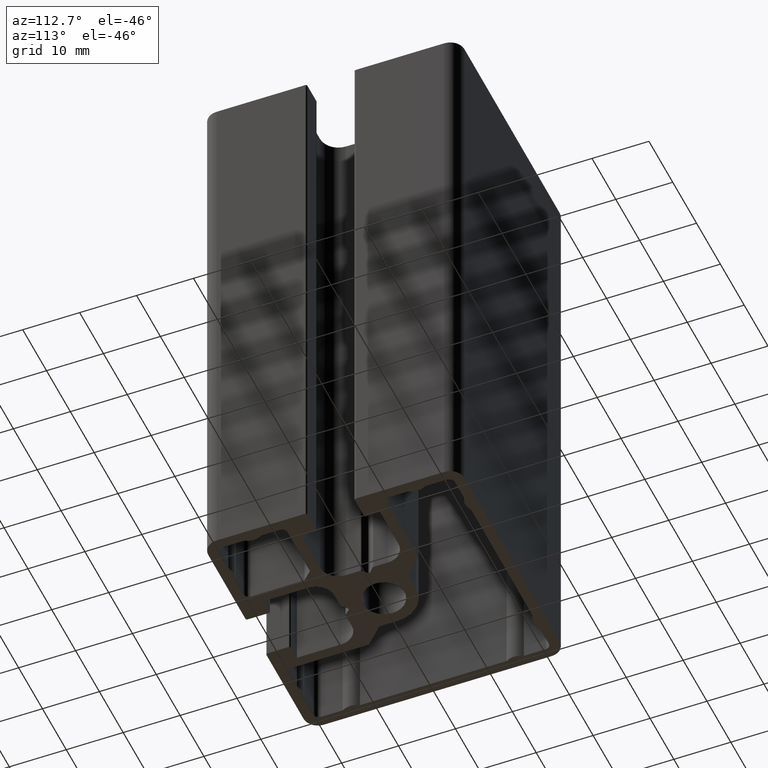
[diagram: clean part render]
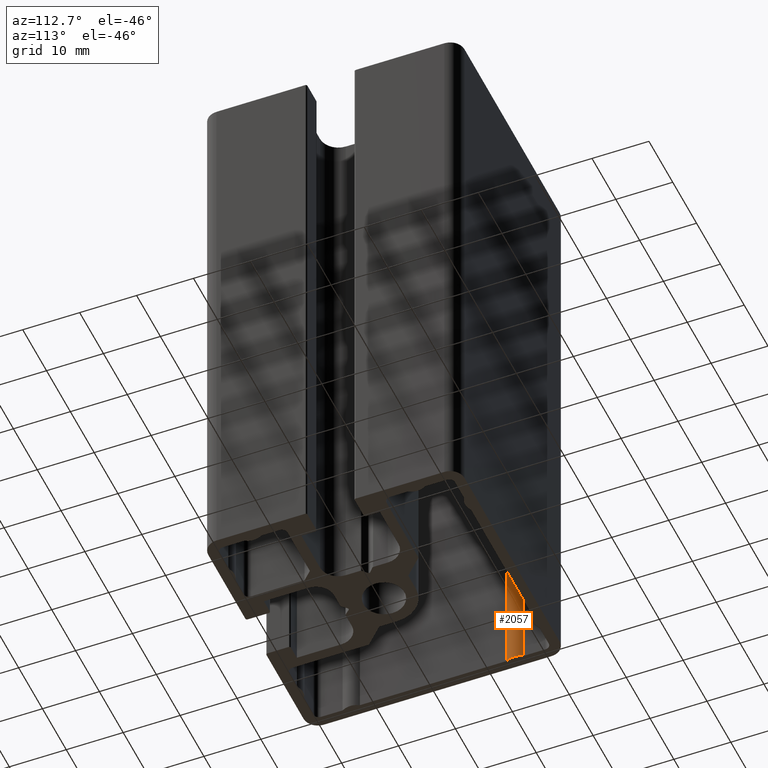
[diagram: same view with one face highlighted and labeled with its STEP entity id]
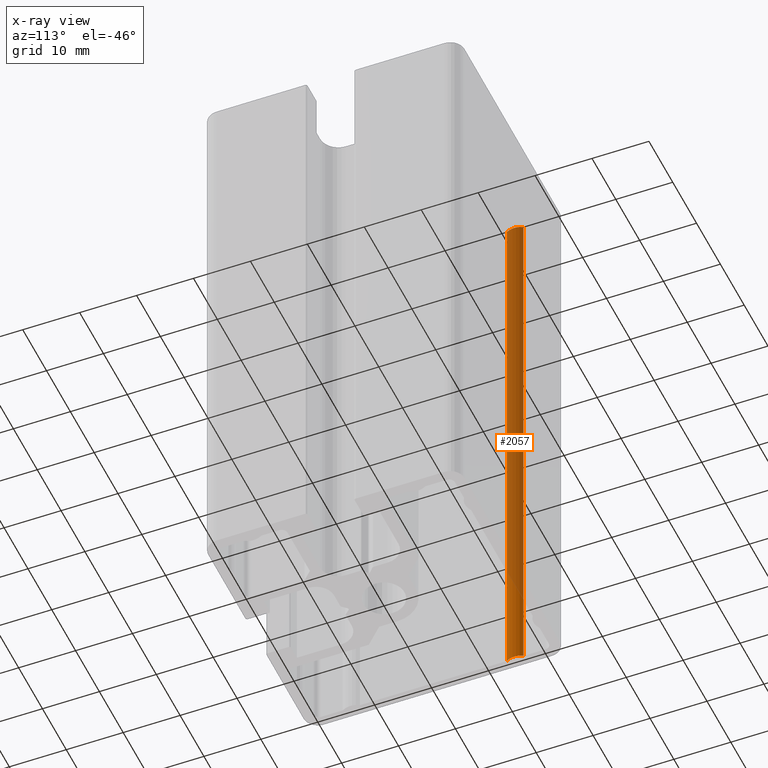
[diagram: x-ray of the same camera — body ghosted, the highlighted face saturated]
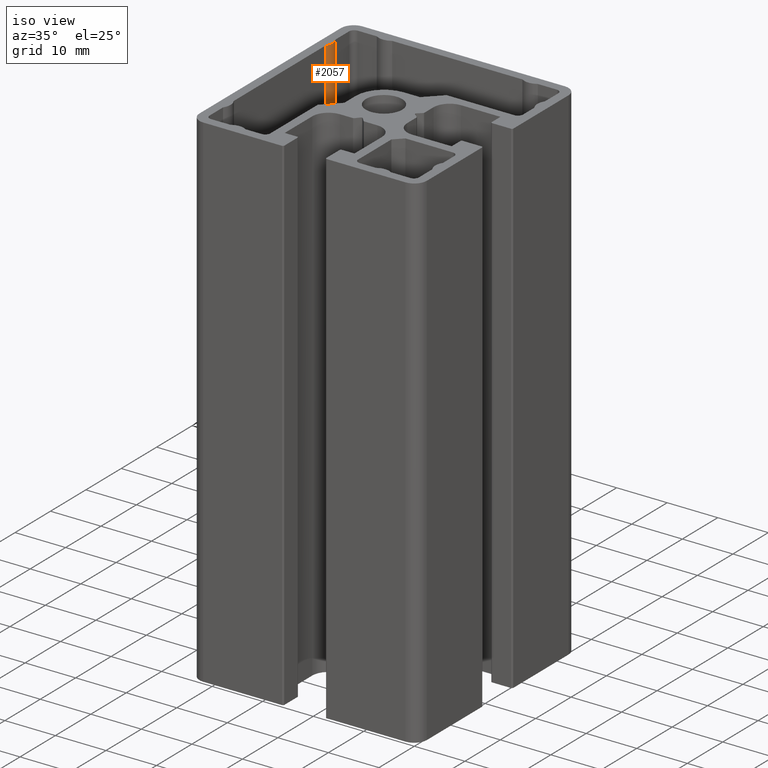
[diagram: same view with one face highlighted and labeled with its STEP entity id]
A machine part, auxiliary view. The second image highlights one B-rep face of the part: STEP entity #2057.
The next image is the same camera in x-ray: the body ghosted, the highlighted face saturated — about 83% of this face is hidden behind the body in this view.
A second angle (iso view) of the same face is appended — the face is thin or edge-on in the first view.
In plain terms, the highlighted cylindrical surface (edge-blend (fillet) strip) has radius 2.72 mm, axis along (0, 0, 1).
Its self-contained STEP definition (entity closure, byte-faithful):
#64=CIRCLE('',#2209,2.71999999998912);
#65=CIRCLE('',#2210,2.71999999998912);
#155=CYLINDRICAL_SURFACE('',#2208,2.71999999998912);
#229=FACE_OUTER_BOUND('',#336,.T.);
#336=EDGE_LOOP('',(#1495,#1496,#1497,#1498));
#486=LINE('',#3225,#688);
#487=LINE('',#3231,#689);
#688=VECTOR('',#2585,100.);
#689=VECTOR('',#2592,100.);
#893=VERTEX_POINT('',#3221);
#894=VERTEX_POINT('',#3223);
#895=VERTEX_POINT('',#3227);
#896=VERTEX_POINT('',#3229);
#1142=EDGE_CURVE('',#894,#893,#486,.T.);
#1143=EDGE_CURVE('',#893,#895,#64,.T.);
#1144=EDGE_CURVE('',#896,#894,#65,.T.);
#1145=EDGE_CURVE('',#896,#895,#487,.T.);
#1495=ORIENTED_EDGE('',*,*,#1143,.F.);
#1496=ORIENTED_EDGE('',*,*,#1142,.F.);
#1497=ORIENTED_EDGE('',*,*,#1144,.F.);
#1498=ORIENTED_EDGE('',*,*,#1145,.T.);
#2057=ADVANCED_FACE('',(#229),#155,.T.);
#2208=AXIS2_PLACEMENT_3D('',#3226,#2586,#2587);
#2209=AXIS2_PLACEMENT_3D('',#3228,#2588,#2589);
#2210=AXIS2_PLACEMENT_3D('',#3230,#2590,#2591);
#2585=DIRECTION('',(0.,0.,1.));
#2586=DIRECTION('center_axis',(0.,0.,1.));
#2587=DIRECTION('ref_axis',(0.848484848487957,-0.529219672618441,0.));
#2588=DIRECTION('center_axis',(0.,0.,1.));
#2589=DIRECTION('ref_axis',(0.848484848487957,-0.529219672618441,0.));
#2590=DIRECTION('center_axis',(0.,0.,-1.));
#2591=DIRECTION('ref_axis',(0.848484848487957,-0.529219672618441,0.));
#2592=DIRECTION('',(0.,0.,1.));
#3221=CARTESIAN_POINT('',(-20.662121212122,12.9605224904836,100.));
#3223=CARTESIAN_POINT('',(-20.662121212122,12.9605224904836,0.));
#3225=CARTESIAN_POINT('',(-20.662121212122,12.9605224904836,0.));
#3226=CARTESIAN_POINT('Origin',(-22.97,14.4,0.));
#3227=CARTESIAN_POINT('',(-20.6621212121211,15.8394775095149,100.));
#3228=CARTESIAN_POINT('Origin',(-22.97,14.4,100.));
#3229=CARTESIAN_POINT('',(-20.6621212121211,15.8394775095149,0.));
#3230=CARTESIAN_POINT('Origin',(-22.97,14.4,0.));
#3231=CARTESIAN_POINT('',(-20.6621212121211,15.8394775095149,0.));